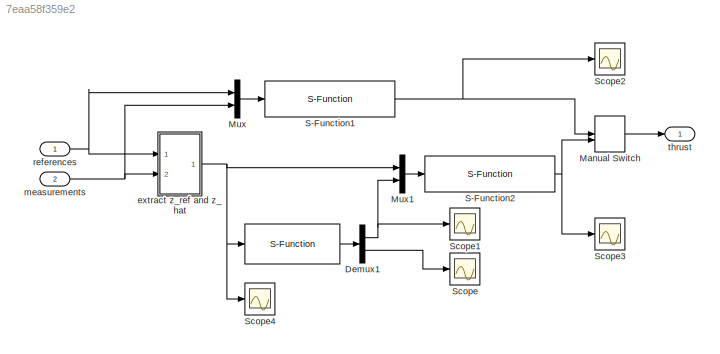
MODEL slx_7eaa58f359e2
KIND model
CONFIG AbsTol = auto
CONFIG FixedStep = auto
CONFIG MaxStep = auto
CONFIG MinStep = auto
CONFIG RelTol = 1e-3
CONFIG SampleTimeConstraint = Unconstrained
CONFIG Solver = VariableStepAuto
CONFIG SolverMode = Auto
CONFIG SolverName = VariableStepAuto
CONFIG StartTime = 0.0
CONFIG StopTime = 50
BLOCK [S-Function]    
  EnableBusSupport = off
  FunctionName = sfunc_RLS_d
  Parameters = RLSparam
  Ports = [1, 1]
  SFunctionDeploymentMode = off
BLOCK [Demux] Demux1
  DisplayOption = bar
  Outputs = [4,1]
  Ports = [1, 2]
BLOCK [ManualSwitch] Manual Switch
BLOCK [Mux] Mux
  DisplayOption = bar
  Inputs = 2
  Ports = [2, 1]
BLOCK [Mux] Mux1
  DisplayOption = bar
  Inputs = 2
  Ports = [2, 1]
BLOCK [S-Function] S-Function1
  EnableBusSupport = off
  FunctionName = sfunc_inner_PD_thrust_d
  Parameters = PD_thrust_param
  Ports = [1, 1]
  SFunctionDeploymentMode = off
BLOCK [S-Function] S-Function2
  EnableBusSupport = off
  FunctionName = sfunc_inner_APPC_thrust_d
  Ports = [1, 1]
  SFunctionDeploymentMode = off
BLOCK [Scope] Scope
  Ports = [1]
  ScopeSpecificationString = Simulink.scopes.TimeScopeBlockCfg('CurrentConfiguration', extmgr.ConfigurationSet(extmgr.Configuration('Core','General UI',true),extmgr.Configuration('Core','Source UI',true),extmgr.Configuration('Sources','WiredSimulink',true,'DataLoggingSaveFormat','Array','DataLoggingDecimation','1','DataLoggingDecimateData',true),extmgr.Configuration('Visuals','Time Domain',true,'SerializedDisplays',{struct('M...<+1545ch>
BLOCK [Scope] Scope1
  Ports = [1]
  ScopeSpecificationString = Simulink.scopes.TimeScopeBlockCfg('CurrentConfiguration', extmgr.ConfigurationSet(extmgr.Configuration('Core','General UI',true),extmgr.Configuration('Core','Source UI',true),extmgr.Configuration('Sources','WiredSimulink',true,'DataLoggingSaveFormat','Array','DataLoggingDecimation','1','DataLoggingDecimateData',true,'DataLoggingVariableName','ScopeData1'),extmgr.Configuration('Visuals','Time Domai...<+1619ch>
BLOCK [Scope] Scope2
  Ports = [1]
  ScopeSpecificationString = Simulink.scopes.TimeScopeBlockCfg('CurrentConfiguration', extmgr.ConfigurationSet(extmgr.Configuration('Core','General UI',true),extmgr.Configuration('Core','Source UI',true),extmgr.Configuration('Sources','WiredSimulink',true,'DataLoggingSaveFormat','Array','DataLoggingDecimation','1','DataLoggingDecimateData',true,'DataLoggingVariableName','ScopeData1'),extmgr.Configuration('Visuals','Time Domai...<+1583ch>
BLOCK [Scope] Scope3
  Ports = [1]
  ScopeSpecificationString = Simulink.scopes.TimeScopeBlockCfg('CurrentConfiguration', extmgr.ConfigurationSet(extmgr.Configuration('Core','General UI',true),extmgr.Configuration('Core','Source UI',true),extmgr.Configuration('Sources','WiredSimulink',true,'DataLoggingSaveFormat','Array','DataLoggingDecimation','1','DataLoggingDecimateData',true,'DataLoggingVariableName','ScopeData2'),extmgr.Configuration('Visuals','Time Domai...<+1583ch>
BLOCK [Scope] Scope4
  Ports = [1]
  ScopeSpecificationString = Simulink.scopes.TimeScopeBlockCfg('CurrentConfiguration', extmgr.ConfigurationSet(extmgr.Configuration('Core','General UI',true),extmgr.Configuration('Core','Source UI',true),extmgr.Configuration('Sources','WiredSimulink',true,'DataLoggingSaveFormat','Array','DataLoggingDecimation','1','DataLoggingDecimateData',true,'DataLoggingVariableName','ScopeData1'),extmgr.Configuration('Visuals','Time Domai...<+1629ch>
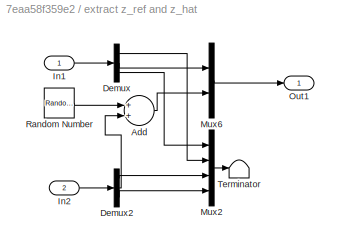
BLOCK [SubSystem] extract z_ref and z_hat
  Ports = [2, 1]
  RequestExecContextInheritance = off
  Variant = off
BLOCK [Sum] extract z_ref and z_hat/Add
  InputSameDT = off
  OutDataTypeStr = Inherit: Inherit via internal rule
  Ports = [2, 1]
  SaturateOnIntegerOverflow = off
BLOCK [Demux] extract z_ref and z_hat/Demux
  DisplayOption = bar
  Outputs = [2,1,9]
  Ports = [1, 3]
BLOCK [Demux] extract z_ref and z_hat/Demux2
  DisplayOption = bar
  Outputs = [2,1,9]
  Ports = [1, 3]
BLOCK [Inport] extract z_ref and z_hat/In1
  IconDisplay = Port number
BLOCK [Inport] extract z_ref and z_hat/In2
  IconDisplay = Port number
  Port = 2
BLOCK [Mux] extract z_ref and z_hat/Mux2
  DisplayOption = bar
  Ports = [4, 1]
BLOCK [Mux] extract z_ref and z_hat/Mux6
  DisplayOption = bar
  Inputs = 2
  Ports = [2, 1]
BLOCK [Outport] extract z_ref and z_hat/Out1
  IconDisplay = Port number
BLOCK [RandomNumber] extract z_ref and z_hat/Random Number
  SampleTime = 0.002
  Variance = 0.1
BLOCK [Terminator] extract z_ref and z_hat/Terminator
BLOCK [Inport] measurements
  IconDisplay = Port number
  Port = 2
  PortDimensions = 12
BLOCK [Inport] references
  IconDisplay = Port number
  PortDimensions = 12
BLOCK [Outport] thrust
  IconDisplay = Port number
LINE    :1 -> Demux1:1
NET Demux1:1 -> Mux1:2, Scope1:1
LINE Demux1:2 -> Scope:1
LINE Manual Switch:1 -> thrust:1
LINE Mux1:1 -> S-Function2:1
LINE Mux:1 -> S-Function1:1
NET S-Function1:1 -> Manual Switch:1, Scope2:1
NET S-Function2:1 -> Manual Switch:2, Scope3:1
LINE extract z_ref and z_hat/Add:1 -> extract z_ref and z_hat/Mux6:2
LINE extract z_ref and z_hat/Demux2:1 -> extract z_ref and z_hat/Mux2:3
LINE extract z_ref and z_hat/Demux2:2 -> extract z_ref and z_hat/Add:2
LINE extract z_ref and z_hat/Demux2:3 -> extract z_ref and z_hat/Mux2:4
LINE extract z_ref and z_hat/Demux:1 -> extract z_ref and z_hat/Mux2:2
LINE extract z_ref and z_hat/Demux:2 -> extract z_ref and z_hat/Mux6:1
LINE extract z_ref and z_hat/Demux:3 -> extract z_ref and z_hat/Mux2:1
LINE extract z_ref and z_hat/In1:1 -> extract z_ref and z_hat/Demux:1
LINE extract z_ref and z_hat/In2:1 -> extract z_ref and z_hat/Demux2:1
LINE extract z_ref and z_hat/Mux2:1 -> extract z_ref and z_hat/Terminator:1
LINE extract z_ref and z_hat/Mux6:1 -> extract z_ref and z_hat/Out1:1
LINE extract z_ref and z_hat/Random Number:1 -> extract z_ref and z_hat/Add:1
NET extract z_ref and z_hat:1 ->    :1, Mux1:1, Scope4:1
NET measurements:1 -> Mux:2, extract z_ref and z_hat:2
NET references:1 -> Mux:1, extract z_ref and z_hat:1
note: NET lines group one-source signal fan-out (src -> all destinations, sorted); 1:1 wires keep LINE
